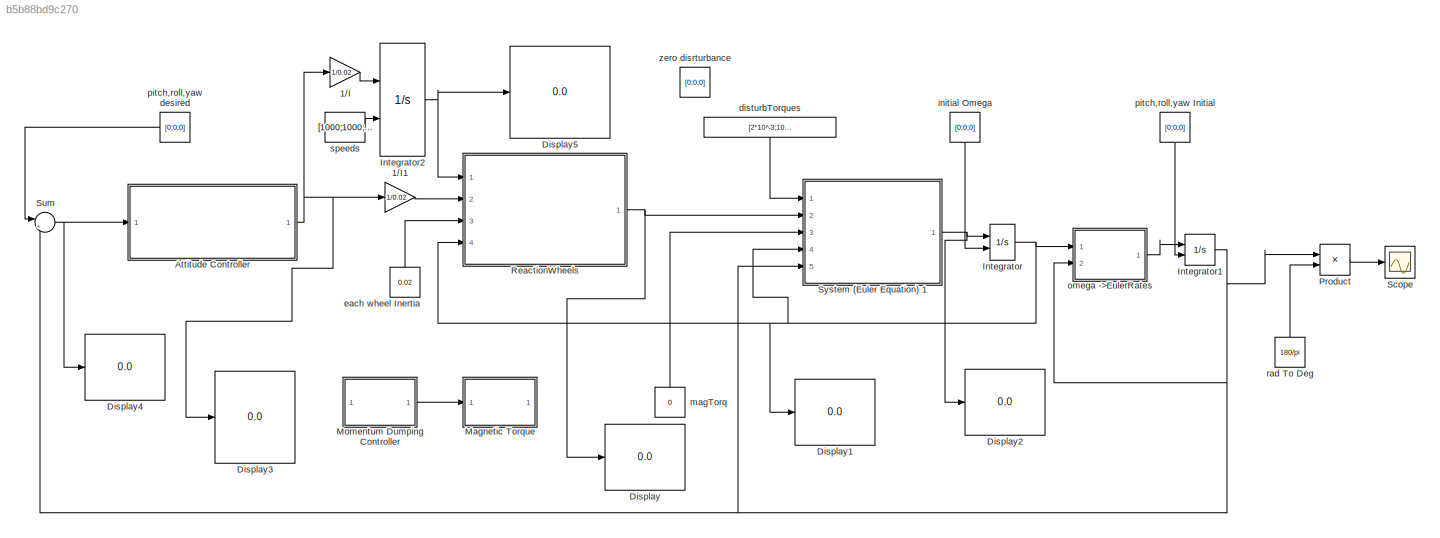
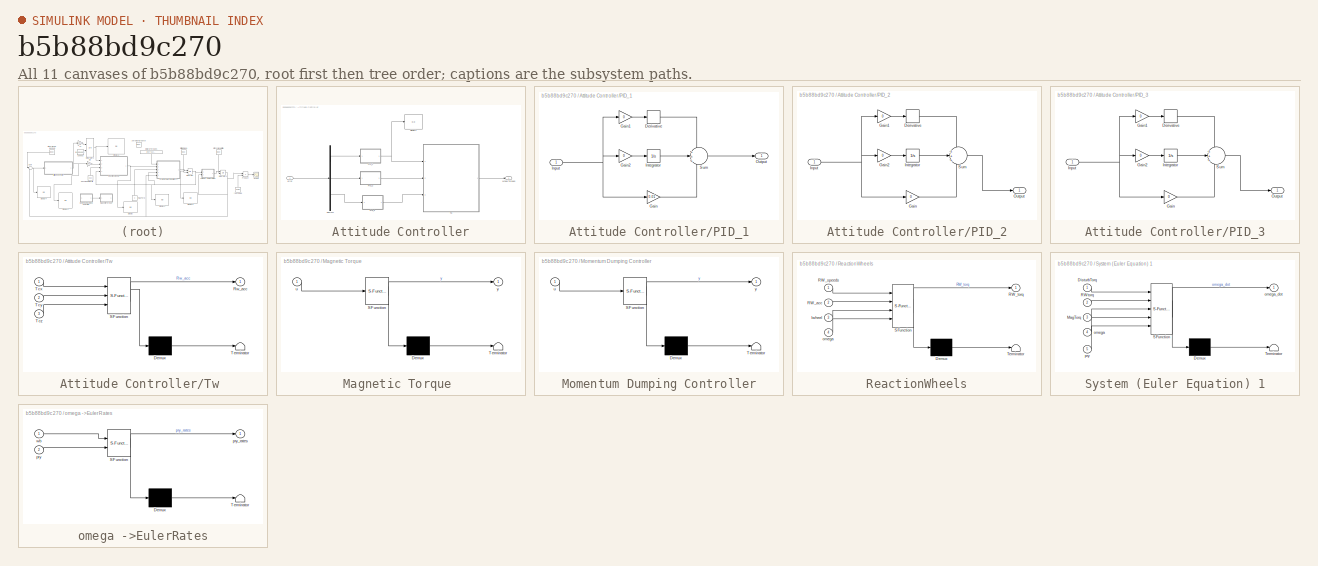
[diagram: thumbnail index - all 11 canvases of the model, root first then tree order]
MODEL slx_b5b88bd9c270
KIND model
BLOCK [Gain] 1//I
  Gain = 1/0.02
  OutDataTypeStr = Inherit: Inherit via internal rule
  ParamDataTypeStr = Inherit: Inherit via internal rule
  SaturateOnIntegerOverflow = off
BLOCK [Gain] 1//I1
  Gain = 1/0.02
  OutDataTypeStr = Inherit: Inherit via internal rule
  ParamDataTypeStr = Inherit: Inherit via internal rule
  SaturateOnIntegerOverflow = off
BLOCK [SubSystem] Attitude Controller
  Ports = [1, 1]
  RequestExecContextInheritance = off
  Variant = off
BLOCK [Demux] Attitude Controller/Demux1
  DisplayOption = bar
  Outputs = 3
  Ports = [1, 3]
BLOCK [Display] Attitude Controller/Display4
  Decimation = 1
  Ports = [1]
BLOCK [SubSystem] Attitude Controller/PID_1
  Ports = [1, 1]
  RequestExecContextInheritance = off
  Variant = off
BLOCK [Derivative] Attitude Controller/PID_1/Derivative
BLOCK [Gain] Attitude Controller/PID_1/Gain
  Gain = 0.01
  OutDataTypeStr = Inherit: Inherit via internal rule
  ParamDataTypeStr = Inherit: Inherit via internal rule
  SaturateOnIntegerOverflow = off
BLOCK [Gain] Attitude Controller/PID_1/Gain1
  Gain = 0
  OutDataTypeStr = Inherit: Inherit via internal rule
  ParamDataTypeStr = Inherit: Inherit via internal rule
  SaturateOnIntegerOverflow = off
BLOCK [Gain] Attitude Controller/PID_1/Gain2
  Gain = 0
  OutDataTypeStr = Inherit: Inherit via internal rule
  ParamDataTypeStr = Inherit: Inherit via internal rule
  SaturateOnIntegerOverflow = off
BLOCK [Inport] Attitude Controller/PID_1/Input
  IconDisplay = Port number
BLOCK [Integrator] Attitude Controller/PID_1/Integrator
  Ports = [1, 1]
BLOCK [Outport] Attitude Controller/PID_1/Output
  IconDisplay = Port number
BLOCK [Sum] Attitude Controller/PID_1/Sum
  IconShape = round
  InputSameDT = off
  Inputs = +++
  OutDataTypeStr = Inherit: Inherit via internal rule
  Ports = [3, 1]
  SaturateOnIntegerOverflow = off
BLOCK [SubSystem] Attitude Controller/PID_2
  Ports = [1, 1]
  RequestExecContextInheritance = off
  Variant = off
BLOCK [Derivative] Attitude Controller/PID_2/Derivative
BLOCK [Gain] Attitude Controller/PID_2/Gain
  Gain = 0
  OutDataTypeStr = Inherit: Inherit via internal rule
  ParamDataTypeStr = Inherit: Inherit via internal rule
  SaturateOnIntegerOverflow = off
BLOCK [Gain] Attitude Controller/PID_2/Gain1
  Gain = 0
  OutDataTypeStr = Inherit: Inherit via internal rule
  ParamDataTypeStr = Inherit: Inherit via internal rule
  SaturateOnIntegerOverflow = off
BLOCK [Gain] Attitude Controller/PID_2/Gain2
  Gain = 0
  OutDataTypeStr = Inherit: Inherit via internal rule
  ParamDataTypeStr = Inherit: Inherit via internal rule
  SaturateOnIntegerOverflow = off
BLOCK [Inport] Attitude Controller/PID_2/Input
  IconDisplay = Port number
BLOCK [Integrator] Attitude Controller/PID_2/Integrator
  Ports = [1, 1]
BLOCK [Outport] Attitude Controller/PID_2/Output
  IconDisplay = Port number
BLOCK [Sum] Attitude Controller/PID_2/Sum
  IconShape = round
  InputSameDT = off
  Inputs = +++
  OutDataTypeStr = Inherit: Inherit via internal rule
  Ports = [3, 1]
  SaturateOnIntegerOverflow = off
BLOCK [SubSystem] Attitude Controller/PID_3
  Ports = [1, 1]
  RequestExecContextInheritance = off
  Variant = off
BLOCK [Derivative] Attitude Controller/PID_3/Derivative
BLOCK [Gain] Attitude Controller/PID_3/Gain
  Gain = 0
  OutDataTypeStr = Inherit: Inherit via internal rule
  ParamDataTypeStr = Inherit: Inherit via internal rule
  SaturateOnIntegerOverflow = off
BLOCK [Gain] Attitude Controller/PID_3/Gain1
  Gain = 0
  OutDataTypeStr = Inherit: Inherit via internal rule
  ParamDataTypeStr = Inherit: Inherit via internal rule
  SaturateOnIntegerOverflow = off
BLOCK [Gain] Attitude Controller/PID_3/Gain2
  Gain = 0
  OutDataTypeStr = Inherit: Inherit via internal rule
  ParamDataTypeStr = Inherit: Inherit via internal rule
  SaturateOnIntegerOverflow = off
BLOCK [Inport] Attitude Controller/PID_3/Input
  IconDisplay = Port number
BLOCK [Integrator] Attitude Controller/PID_3/Integrator
  Ports = [1, 1]
BLOCK [Outport] Attitude Controller/PID_3/Output
  IconDisplay = Port number
BLOCK [Sum] Attitude Controller/PID_3/Sum
  IconShape = round
  InputSameDT = off
  Inputs = +++
  OutDataTypeStr = Inherit: Inherit via internal rule
  Ports = [3, 1]
  SaturateOnIntegerOverflow = off
BLOCK [SubSystem] Attitude Controller/Tw 
  ErrorFcn = Stateflow.Translate.translate
  PermitHierarchicalResolution = ParametersOnly
  Ports = [3, 1]
  RequestExecContextInheritance = off
  SFBlockType = MATLAB Function
  TreatAsAtomicUnit = on
  Variant = off
BLOCK [Demux] Attitude Controller/Tw / Demux 
  Outputs = 1
  Ports = [1, 1]
BLOCK [S-Function] Attitude Controller/Tw / SFunction 
  EnableBusSupport = on
  FunctionName = sf_sfun
  PortCounts = [3 2]
  Ports = [3, 2]
  SFunctionDeploymentMode = off
  Tag = Stateflow S-Function mainModel_matlab2013b 1
BLOCK [Terminator] Attitude Controller/Tw / Terminator 
BLOCK [Outport] Attitude Controller/Tw /Rw_acc
  IconDisplay = Port number
BLOCK [Inport] Attitude Controller/Tw /Tcx
  IconDisplay = Port number
BLOCK [Inport] Attitude Controller/Tw /Tcy
  IconDisplay = Port number
  Port = 2
BLOCK [Inport] Attitude Controller/Tw /Tcz
  IconDisplay = Port number
  Port = 3
BLOCK [Outport] Attitude Controller/Wheel Torques
  IconDisplay = Port number
BLOCK [Inport] Attitude Controller/error
  IconDisplay = Port number
BLOCK [Display] Display
  Decimation = 1
  Ports = [1]
BLOCK [Display] Display1
  Decimation = 1
  Ports = [1]
BLOCK [Display] Display2
  Decimation = 1
  Ports = [1]
BLOCK [Display] Display3
  Decimation = 1
  Ports = [1]
BLOCK [Display] Display4
  Decimation = 1
  Ports = [1]
BLOCK [Display] Display5
  Decimation = 1
  Ports = [1]
BLOCK [Integrator] Integrator
  InitialConditionSource = external
  Ports = [2, 1]
BLOCK [Integrator] Integrator1
  InitialConditionSource = external
  Ports = [2, 1]
BLOCK [Integrator] Integrator2
  InitialConditionSource = external
  LimitOutput = on
  LowerSaturationLimit = 100
  Ports = [2, 1]
  UpperSaturationLimit = 2000
BLOCK [SubSystem] Magnetic Torque 
  Commented = on
  ErrorFcn = Stateflow.Translate.translate
  PermitHierarchicalResolution = ParametersOnly
  Ports = [1, 1]
  RequestExecContextInheritance = off
  SFBlockType = MATLAB Function
  TreatAsAtomicUnit = on
  Variant = off
BLOCK [Demux] Magnetic Torque / Demux 
  Outputs = 1
  Ports = [1, 1]
BLOCK [S-Function] Magnetic Torque / SFunction 
  EnableBusSupport = on
  FunctionName = sf_sfun
  PortCounts = [1 2]
  Ports = [1, 2]
  SFunctionDeploymentMode = off
  Tag = Stateflow S-Function mainModel_matlab2013b 6
BLOCK [Terminator] Magnetic Torque / Terminator 
BLOCK [Inport] Magnetic Torque /u
  IconDisplay = Port number
BLOCK [Outport] Magnetic Torque /y
  IconDisplay = Port number
BLOCK [SubSystem] Momentum Dumping Controller
  Commented = on
  ErrorFcn = Stateflow.Translate.translate
  PermitHierarchicalResolution = ParametersOnly
  Ports = [1, 1]
  RequestExecContextInheritance = off
  SFBlockType = MATLAB Function
  TreatAsAtomicUnit = on
  Variant = off
BLOCK [Demux] Momentum Dumping Controller/ Demux 
  Outputs = 1
  Ports = [1, 1]
BLOCK [S-Function] Momentum Dumping Controller/ SFunction 
  EnableBusSupport = on
  FunctionName = sf_sfun
  PortCounts = [1 2]
  Ports = [1, 2]
  SFunctionDeploymentMode = off
  Tag = Stateflow S-Function mainModel_matlab2013b 9
BLOCK [Terminator] Momentum Dumping Controller/ Terminator 
BLOCK [Inport] Momentum Dumping Controller/u
  IconDisplay = Port number
BLOCK [Outport] Momentum Dumping Controller/y
  IconDisplay = Port number
BLOCK [Product] Product
  InputSameDT = off
  OutDataTypeStr = Inherit: Inherit via internal rule
  Ports = [2, 1]
  RndMeth = Floor
  SaturateOnIntegerOverflow = off
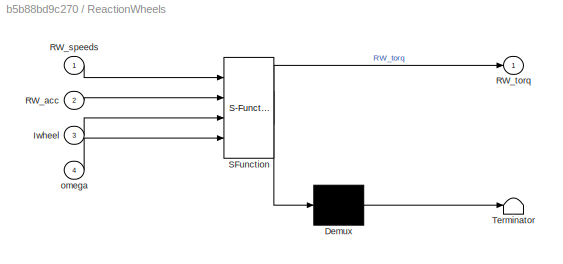
BLOCK [SubSystem] ReactionWheels
  ErrorFcn = Stateflow.Translate.translate
  PermitHierarchicalResolution = ParametersOnly
  Ports = [4, 1]
  RequestExecContextInheritance = off
  SFBlockType = MATLAB Function
  TreatAsAtomicUnit = on
  Variant = off
BLOCK [Demux] ReactionWheels/ Demux 
  Outputs = 1
  Ports = [1, 1]
BLOCK [S-Function] ReactionWheels/ SFunction 
  EnableBusSupport = on
  FunctionName = sf_sfun
  PortCounts = [4 2]
  Ports = [4, 2]
  SFunctionDeploymentMode = off
  Tag = Stateflow S-Function mainModel_matlab2013b 8
BLOCK [Terminator] ReactionWheels/ Terminator 
BLOCK [Inport] ReactionWheels/Iwheel
  IconDisplay = Port number
  Port = 3
BLOCK [Inport] ReactionWheels/RW_acc
  IconDisplay = Port number
  Port = 2
BLOCK [Inport] ReactionWheels/RW_speeds
  IconDisplay = Port number
BLOCK [Outport] ReactionWheels/RW_torq
  IconDisplay = Port number
BLOCK [Inport] ReactionWheels/omega
  IconDisplay = Port number
  Port = 4
BLOCK [Scope] Scope
  DataFormat = StructureWithTime
  Decimation = 1
  Grid = on
  LimitDataPoints = off
  MaxDataPoints = 5000
  NumInputPorts = 1
  Ports = [1]
  SampleInput = off
  SampleTime = -1
  SaveName = ScopeData
  SaveToWorkspace = off
  ShowLegends = on
  TickLabels = OneTimeTick
  TimeRange = auto
  YMax = 38.97609
  YMin = -4.33068
  ZoomMode = on
BLOCK [Sum] Sum
  IconShape = round
  InputSameDT = off
  Inputs = |+-
  OutDataTypeStr = Inherit: Inherit via internal rule
  Ports = [2, 1]
  SaturateOnIntegerOverflow = off
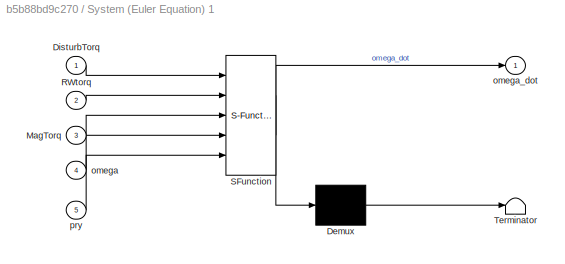
BLOCK [SubSystem] System (Euler Equation) 1
  ErrorFcn = Stateflow.Translate.translate
  PermitHierarchicalResolution = ParametersOnly
  Ports = [5, 1]
  RequestExecContextInheritance = off
  SFBlockType = MATLAB Function
  TreatAsAtomicUnit = on
  Variant = off
BLOCK [Demux] System (Euler Equation) 1/ Demux 
  Outputs = 1
  Ports = [1, 1]
BLOCK [S-Function] System (Euler Equation) 1/ SFunction 
  EnableBusSupport = on
  FunctionName = sf_sfun
  PortCounts = [5 2]
  Ports = [5, 2]
  SFunctionDeploymentMode = off
  Tag = Stateflow S-Function mainModel_matlab2013b 3
BLOCK [Terminator] System (Euler Equation) 1/ Terminator 
BLOCK [Inport] System (Euler Equation) 1/DisturbTorq
  IconDisplay = Port number
BLOCK [Inport] System (Euler Equation) 1/MagTorq
  IconDisplay = Port number
  Port = 3
BLOCK [Inport] System (Euler Equation) 1/RWtorq
  IconDisplay = Port number
  Port = 2
BLOCK [Inport] System (Euler Equation) 1/omega
  IconDisplay = Port number
  Port = 4
BLOCK [Outport] System (Euler Equation) 1/omega_dot
  IconDisplay = Port number
BLOCK [Inport] System (Euler Equation) 1/pry
  IconDisplay = Port number
  Port = 5
BLOCK [Constant] disturbTorques
  Value = [2*10^-3;10^-4;2*10^-3]
BLOCK [Constant] each wheel Inertia
  Value = 0.02
BLOCK [Constant] initial Omega
  Value = [0;0;0]
BLOCK [Constant] magTorq 
  Value = 0
BLOCK [SubSystem] omega ->EulerRates
  ErrorFcn = Stateflow.Translate.translate
  PermitHierarchicalResolution = ParametersOnly
  Ports = [2, 1]
  RequestExecContextInheritance = off
  SFBlockType = MATLAB Function
  TreatAsAtomicUnit = on
  Variant = off
BLOCK [Demux] omega ->EulerRates/ Demux 
  Outputs = 1
  Ports = [1, 1]
BLOCK [S-Function] omega ->EulerRates/ SFunction 
  EnableBusSupport = on
  FunctionName = sf_sfun
  PortCounts = [2 2]
  Ports = [2, 2]
  SFunctionDeploymentMode = off
  Tag = Stateflow S-Function mainModel_matlab2013b 7
BLOCK [Terminator] omega ->EulerRates/ Terminator 
BLOCK [Inport] omega ->EulerRates/pry
  IconDisplay = Port number
  Port = 2
BLOCK [Outport] omega ->EulerRates/pry_rates
  IconDisplay = Port number
BLOCK [Inport] omega ->EulerRates/wb
  IconDisplay = Port number
BLOCK [Constant] pitch,roll,yaw Initial
  Value = [0;0;0]
BLOCK [Constant] pitch,roll,yaw desired
  Value = [0;0;0]
BLOCK [Constant] rad To Deg
  Value = 180/pi
BLOCK [Constant] speeds
  Value = [1000;1000;1000;1732]
BLOCK [Constant] zero disrturbance 
  Commented = on
  Value = [0;0;0]
LINE 1//I1:1 -> ReactionWheels:2
LINE 1//I:1 -> Integrator2:1
LINE Attitude Controller/Demux1:1 -> Attitude Controller/PID_1:1
LINE Attitude Controller/Demux1:2 -> Attitude Controller/PID_2:1
LINE Attitude Controller/Demux1:3 -> Attitude Controller/PID_3:1
LINE Attitude Controller/PID_1/Derivative:1 -> Attitude Controller/PID_1/Sum:1
LINE Attitude Controller/PID_1/Gain1:1 -> Attitude Controller/PID_1/Derivative:1
LINE Attitude Controller/PID_1/Gain2:1 -> Attitude Controller/PID_1/Integrator:1
LINE Attitude Controller/PID_1/Gain:1 -> Attitude Controller/PID_1/Sum:3
NET Attitude Controller/PID_1/Input:1 -> Attitude Controller/PID_1/Gain1:1, Attitude Controller/PID_1/Gain2:1, Attitude Controller/PID_1/Gain:1
LINE Attitude Controller/PID_1/Integrator:1 -> Attitude Controller/PID_1/Sum:2
LINE Attitude Controller/PID_1/Sum:1 -> Attitude Controller/PID_1/Output:1
NET Attitude Controller/PID_1:1 -> Attitude Controller/Display4:1, Attitude Controller/Tw :1
LINE Attitude Controller/PID_2/Derivative:1 -> Attitude Controller/PID_2/Sum:1
LINE Attitude Controller/PID_2/Gain1:1 -> Attitude Controller/PID_2/Derivative:1
LINE Attitude Controller/PID_2/Gain2:1 -> Attitude Controller/PID_2/Integrator:1
LINE Attitude Controller/PID_2/Gain:1 -> Attitude Controller/PID_2/Sum:3
NET Attitude Controller/PID_2/Input:1 -> Attitude Controller/PID_2/Gain1:1, Attitude Controller/PID_2/Gain2:1, Attitude Controller/PID_2/Gain:1
LINE Attitude Controller/PID_2/Integrator:1 -> Attitude Controller/PID_2/Sum:2
LINE Attitude Controller/PID_2/Sum:1 -> Attitude Controller/PID_2/Output:1
LINE Attitude Controller/PID_2:1 -> Attitude Controller/Tw :2
LINE Attitude Controller/PID_3/Derivative:1 -> Attitude Controller/PID_3/Sum:1
LINE Attitude Controller/PID_3/Gain1:1 -> Attitude Controller/PID_3/Derivative:1
LINE Attitude Controller/PID_3/Gain2:1 -> Attitude Controller/PID_3/Integrator:1
LINE Attitude Controller/PID_3/Gain:1 -> Attitude Controller/PID_3/Sum:3
NET Attitude Controller/PID_3/Input:1 -> Attitude Controller/PID_3/Gain1:1, Attitude Controller/PID_3/Gain2:1, Attitude Controller/PID_3/Gain:1
LINE Attitude Controller/PID_3/Integrator:1 -> Attitude Controller/PID_3/Sum:2
LINE Attitude Controller/PID_3/Sum:1 -> Attitude Controller/PID_3/Output:1
LINE Attitude Controller/PID_3:1 -> Attitude Controller/Tw :3
LINE Attitude Controller/Tw :1 -> Attitude Controller/Wheel Torques:1
LINE Attitude Controller/error:1 -> Attitude Controller/Demux1:1
NET Attitude Controller:1 -> 1//I1:1, 1//I:1, Display3:1
NET Integrator1:1 -> Product:1, Sum:2, System (Euler Equation) 1:5, omega ->EulerRates:2
NET Integrator2:1 -> Display5:1, ReactionWheels:1
NET Integrator:1 -> Display1:1, ReactionWheels:4, System (Euler Equation) 1:4, omega ->EulerRates:1
LINE Momentum Dumping Controller:1 -> Magnetic Torque :1
LINE Product:1 -> Scope:1
NET ReactionWheels:1 -> Display:1, System (Euler Equation) 1:2
NET Sum:1 -> Attitude Controller:1, Display4:1
NET System (Euler Equation) 1:1 -> Display2:1, Integrator:1
LINE disturbTorques:1 -> System (Euler Equation) 1:1
LINE each wheel Inertia:1 -> ReactionWheels:3
LINE initial Omega:1 -> Integrator:2
LINE magTorq :1 -> System (Euler Equation) 1:3
LINE omega ->EulerRates:1 -> Integrator1:1
LINE pitch,roll,yaw Initial:1 -> Integrator1:2
LINE pitch,roll,yaw desired:1 -> Sum:1
LINE rad To Deg:1 -> Product:2
LINE speeds:1 -> Integrator2:2
note: NET lines group one-source signal fan-out (src -> all destinations, sorted); 1:1 wires keep LINE
